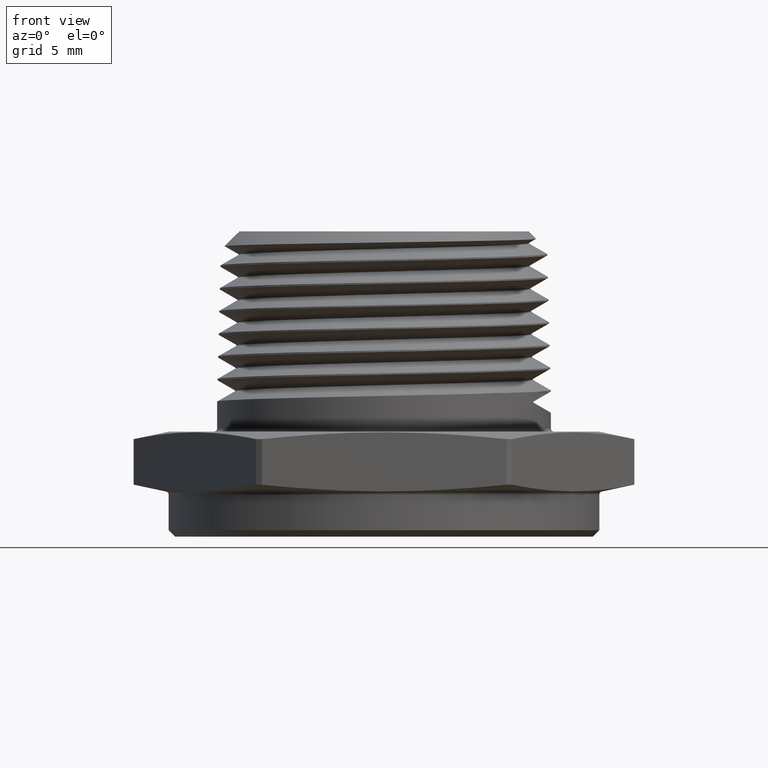
[diagram: clean part render]
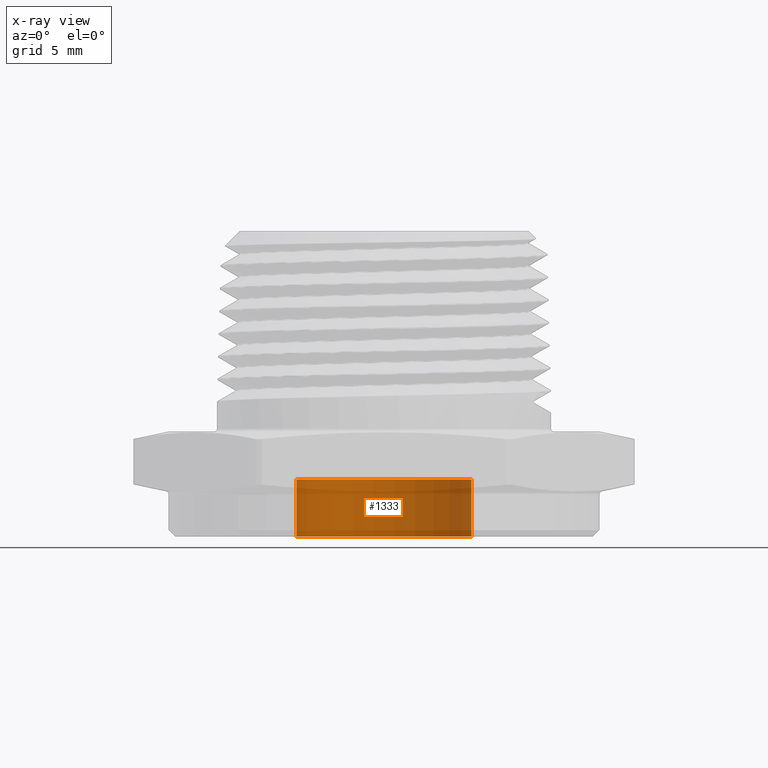
[diagram: x-ray — body ghosted, one internal face saturated and labeled with its STEP entity id]
A machine part, front view, then the same camera in x-ray: the body is ghosted and one INTERNAL B-rep face — a face not visible from any outside direction — is saturated and labeled: STEP entity #1333.
In plain terms, the highlighted cylindrical surface (partial cylindrical patch) has radius 6.985 mm, axis along (-0, -0, -1).
Its self-contained STEP definition (entity closure, byte-faithful):
#542 = AXIS2_PLACEMENT_3D ( 'NONE', #3185, #3183, #3186 ) ;
#560 = AXIS2_PLACEMENT_3D ( 'NONE', #3630, #3631, #3632 ) ;
#561 = AXIS2_PLACEMENT_3D ( 'NONE', #3633, #3634, #3635 ) ;
#687 = CYLINDRICAL_SURFACE ( 'NONE', #542, 0.2750000000000000200 ) ;
#722 = FACE_OUTER_BOUND ( 'NONE', #1064, .T. ) ;
#771 = CIRCLE ( 'NONE', #560, 0.2750000000000000200 ) ;
#773 = LINE ( 'NONE', #3626, #776 ) ;
#775 = CIRCLE ( 'NONE', #561, 0.2750000000000000200 ) ;
#776 = VECTOR ( 'NONE', #3627, 39.37007874015748100 ) ;
#778 = LINE ( 'NONE', #3628, #780 ) ;
#780 = VECTOR ( 'NONE', #3629, 39.37007874015748100 ) ;
#880 = ORIENTED_EDGE ( 'NONE', *, *, #1898, .F. ) ;
#881 = ORIENTED_EDGE ( 'NONE', *, *, #1897, .T. ) ;
#882 = ORIENTED_EDGE ( 'NONE', *, *, #1899, .T. ) ;
#883 = ORIENTED_EDGE ( 'NONE', *, *, #1900, .F. ) ;
#1064 = EDGE_LOOP ( 'NONE', ( #880, #881, #882, #883 ) ) ;
#1067 = VERTEX_POINT ( 'NONE', #3092 ) ;
#1068 = VERTEX_POINT ( 'NONE', #3090 ) ;
#1069 = VERTEX_POINT ( 'NONE', #3093 ) ;
#1072 = VERTEX_POINT ( 'NONE', #3073 ) ;
#1333 = ADVANCED_FACE ( 'NONE', ( #722 ), #687, .T. ) ;
#1897 = EDGE_CURVE ( 'NONE', #1072, #1068, #773, .T. ) ;
#1898 = EDGE_CURVE ( 'NONE', #1072, #1069, #771, .T. ) ;
#1899 = EDGE_CURVE ( 'NONE', #1068, #1067, #775, .T. ) ;
#1900 = EDGE_CURVE ( 'NONE', #1069, #1067, #778, .T. ) ;
#3073 = CARTESIAN_POINT ( 'NONE',  ( 0.2750000000000000200, 3.367778697655221900E-017, 0.1789999999999999900 ) ) ;
#3090 = CARTESIAN_POINT ( 'NONE',  ( 0.2750000000000000200, 3.367778697655221900E-017, 0.0000000000000000000 ) ) ;
#3092 = CARTESIAN_POINT ( 'NONE',  ( -0.2750000000000000200, 0.0000000000000000000, 0.0000000000000000000 ) ) ;
#3093 = CARTESIAN_POINT ( 'NONE',  ( -0.2750000000000000200, 0.0000000000000000000, 0.1789999999999999900 ) ) ;
#3183 = DIRECTION ( 'NONE',  ( -0.0000000000000000000, -0.0000000000000000000, -1.000000000000000000 ) ) ;
#3185 = CARTESIAN_POINT ( 'NONE',  ( 0.0000000000000000000, 0.0000000000000000000, 0.1789999999999999900 ) ) ;
#3186 = DIRECTION ( 'NONE',  ( -1.000000000000000000, 0.0000000000000000000, 0.0000000000000000000 ) ) ;
#3626 = CARTESIAN_POINT ( 'NONE',  ( 0.2750000000000000200, 3.367778697655221900E-017, 0.1789999999999999900 ) ) ;
#3627 = DIRECTION ( 'NONE',  ( -0.0000000000000000000, -0.0000000000000000000, -1.000000000000000000 ) ) ;
#3628 = CARTESIAN_POINT ( 'NONE',  ( -0.2750000000000000200, 0.0000000000000000000, 0.1789999999999999900 ) ) ;
#3629 = DIRECTION ( 'NONE',  ( -0.0000000000000000000, -0.0000000000000000000, -1.000000000000000000 ) ) ;
#3630 = CARTESIAN_POINT ( 'NONE',  ( 0.0000000000000000000, 0.0000000000000000000, 0.1789999999999999900 ) ) ;
#3631 = DIRECTION ( 'NONE',  ( 0.0000000000000000000, 0.0000000000000000000, 1.000000000000000000 ) ) ;
#3632 = DIRECTION ( 'NONE',  ( 1.000000000000000000, 0.0000000000000000000, 0.0000000000000000000 ) ) ;
#3633 = CARTESIAN_POINT ( 'NONE',  ( 0.0000000000000000000, 0.0000000000000000000, 0.0000000000000000000 ) ) ;
#3634 = DIRECTION ( 'NONE',  ( 0.0000000000000000000, 0.0000000000000000000, 1.000000000000000000 ) ) ;
#3635 = DIRECTION ( 'NONE',  ( 1.000000000000000000, 0.0000000000000000000, 0.0000000000000000000 ) ) ;